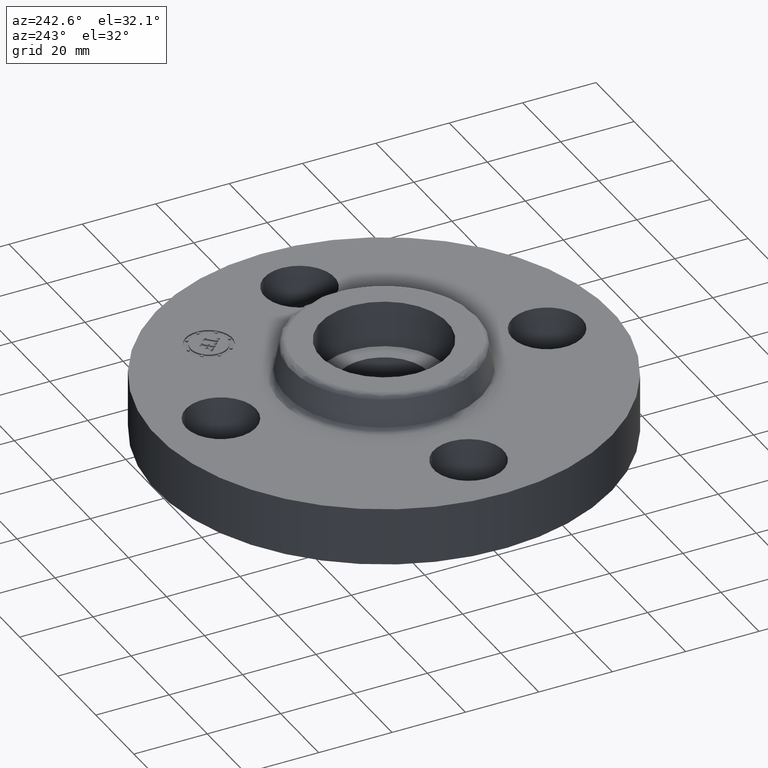
[diagram: clean part render]
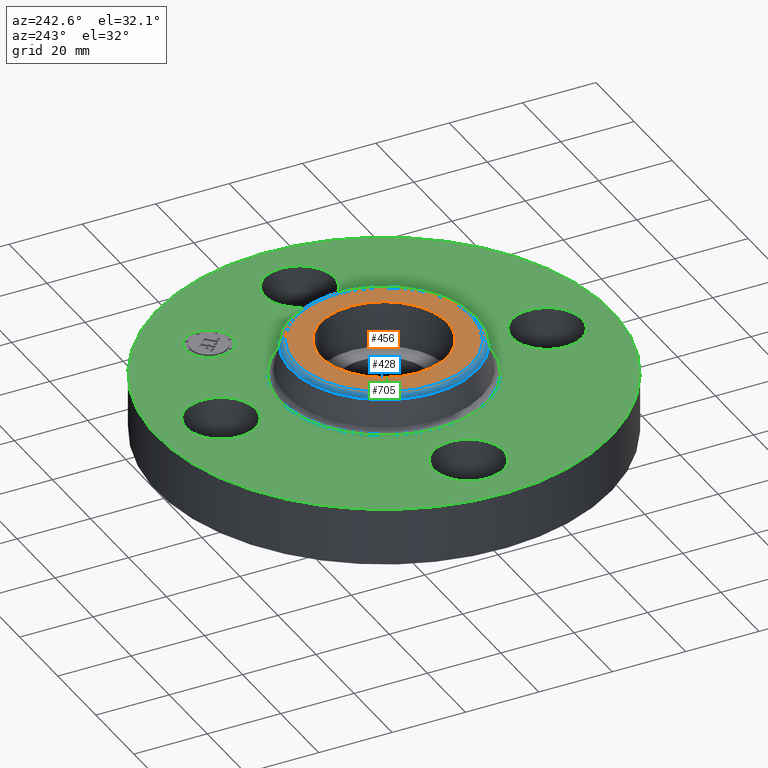
[diagram: same view with three faces highlighted in distinct colors, each labeled with its STEP entity id]
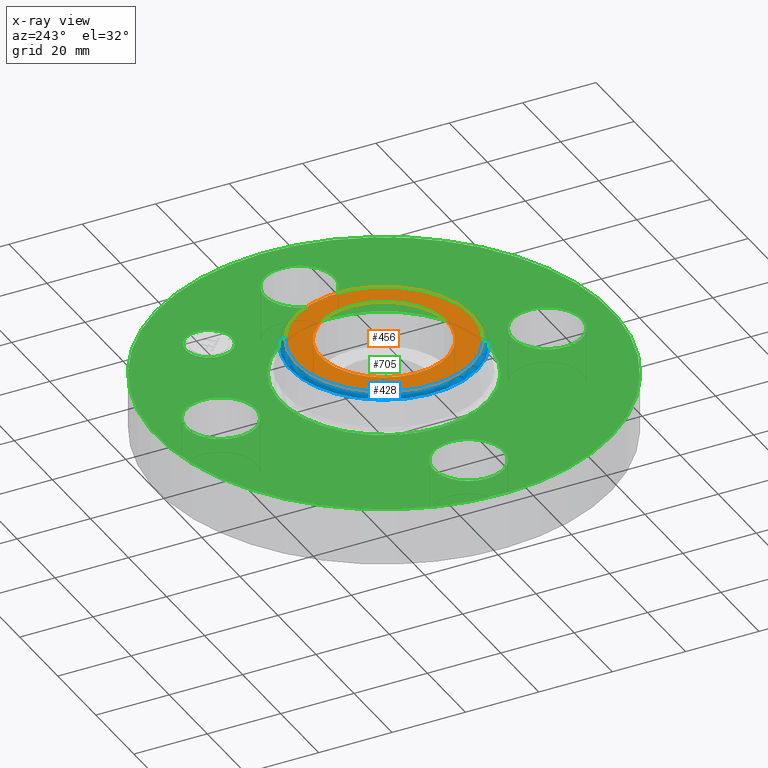
[diagram: x-ray of the same camera — body ghosted, the three highlighted faces saturated]
A machine part, auxiliary view with three faces highlighted in distinct colors.
The next image is the same camera in x-ray (body ghosted, the three faces saturated) — at least one of them is partly hidden behind the body in this view.
Their STEP definitions:

[orange] entity #456 — the highlighted planar face has unit normal (0, 0, -1).
#400=AXIS2_PLACEMENT_3D('Circle Axis2P3D',#398,#399,$) ;
#419=AXIS2_PLACEMENT_3D('Circle Axis2P3D',#417,#418,$) ;
#432=AXIS2_PLACEMENT_3D('Plane Axis2P3D',#429,#430,#431) ;
#440=AXIS2_PLACEMENT_3D('Circle Axis2P3D',#438,#439,$) ;
#449=AXIS2_PLACEMENT_3D('Circle Axis2P3D',#447,#448,$) ;
#395=CARTESIAN_POINT('Vertex',(0.45193037344,0.827252999652,1.)) ;
#398=CARTESIAN_POINT('Axis2P3D Location',(0.,0.,1.)) ;
#402=CARTESIAN_POINT('Vertex',(-0.45193037344,-0.827252999652,1.)) ;
#417=CARTESIAN_POINT('Axis2P3D Location',(0.,0.,1.)) ;
#429=CARTESIAN_POINT('Axis2P3D Location',(0.,0.942649769464,1.)) ;
#438=CARTESIAN_POINT('Axis2P3D Location',(0.,-2.79741234551E-016,1.)) ;
#442=CARTESIAN_POINT('Vertex',(-0.596756142088,0.326009366252,1.)) ;
#444=CARTESIAN_POINT('Vertex',(0.596756142088,-0.326009366252,1.)) ;
#447=CARTESIAN_POINT('Axis2P3D Location',(0.,-1.39870617276E-016,1.)) ;
#399=DIRECTION('Axis2P3D Direction',(0.,0.,-0.0393700787402)) ;
#418=DIRECTION('Axis2P3D Direction',(0.,0.,-0.0393700787402)) ;
#430=DIRECTION('Axis2P3D Direction',(0.,0.,-0.0393700787402)) ;
#431=DIRECTION('Axis2P3D XDirection',(0.0393700787402,0.,0.)) ;
#439=DIRECTION('Axis2P3D Direction',(0.,0.,-0.0393700787402)) ;
#448=DIRECTION('Axis2P3D Direction',(0.,0.,-0.0393700787402)) ;
#435=ORIENTED_EDGE('',*,*,#404,.F.) ;
#436=ORIENTED_EDGE('',*,*,#421,.F.) ;
#453=ORIENTED_EDGE('',*,*,#446,.T.) ;
#454=ORIENTED_EDGE('',*,*,#451,.T.) ;
#455=FACE_BOUND('',#452,.T.) ;
#456=ADVANCED_FACE('PartBody',(#437,#455),#433,.F.) ;
#401=CIRCLE('generated circle',#400,0.942649769464) ;
#420=CIRCLE('generated circle',#419,0.942649769464) ;
#441=CIRCLE('generated circle',#440,0.680000000003) ;
#450=CIRCLE('generated circle',#449,0.680000000003) ;
#404=EDGE_CURVE('',#396,#403,#401,.T.) ;
#421=EDGE_CURVE('',#403,#396,#420,.T.) ;
#446=EDGE_CURVE('',#443,#445,#441,.T.) ;
#451=EDGE_CURVE('',#445,#443,#450,.T.) ;
#434=EDGE_LOOP('',(#435,#436)) ;
#452=EDGE_LOOP('',(#453,#454)) ;
#437=FACE_OUTER_BOUND('',#434,.T.) ;
#433=PLANE('',#432) ;
#396=VERTEX_POINT('',#395) ;
#403=VERTEX_POINT('',#402) ;
#443=VERTEX_POINT('',#442) ;
#445=VERTEX_POINT('',#444) ;

[blue] entity #428 — the highlighted toroidal blend (fillet) surface has major radius 23.9433 mm and minor (blend) radius 1.524 mm.
#376=AXIS2_PLACEMENT_3D('Circle Axis2P3D',#374,#375,$) ;
#389=AXIS2_PLACEMENT_3D('Torus Axis2P3D',#386,#387,#388) ;
#393=AXIS2_PLACEMENT_3D('Circle Axis2P3D',#391,#392,$) ;
#407=AXIS2_PLACEMENT_3D('Circle Axis2P3D',#405,#406,$) ;
#419=AXIS2_PLACEMENT_3D('Circle Axis2P3D',#417,#418,$) ;
#352=CARTESIAN_POINT('Vertex',(0.480258892685,0.879108006303,0.950418890664)) ;
#359=CARTESIAN_POINT('Vertex',(-0.480258892685,-0.879108006303,0.950418890664)) ;
#374=CARTESIAN_POINT('Axis2P3D Location',(0.,0.,0.950418890664)) ;
#386=CARTESIAN_POINT('Axis2P3D Location',(0.,0.,0.940000000004)) ;
#391=CARTESIAN_POINT('Axis2P3D Location',(0.45193037344,0.827252999652,0.940000000004)) ;
#395=CARTESIAN_POINT('Vertex',(0.45193037344,0.827252999652,1.)) ;
#402=CARTESIAN_POINT('Vertex',(-0.45193037344,-0.827252999652,1.)) ;
#405=CARTESIAN_POINT('Axis2P3D Location',(-0.45193037344,-0.827252999652,0.940000000004)) ;
#417=CARTESIAN_POINT('Axis2P3D Location',(0.,0.,1.)) ;
#375=DIRECTION('Axis2P3D Direction',(0.,0.,-0.0393700787402)) ;
#387=DIRECTION('Axis2P3D Direction',(0.,0.,-0.0393700787402)) ;
#388=DIRECTION('Axis2P3D XDirection',(-0.0188750212049,-0.0345504945626,0.)) ;
#392=DIRECTION('Axis2P3D Direction',(-0.0345504945626,0.0188750212049,0.)) ;
#406=DIRECTION('Axis2P3D Direction',(0.0345504945626,-0.0188750212049,0.)) ;
#418=DIRECTION('Axis2P3D Direction',(0.,0.,-0.0393700787402)) ;
#423=ORIENTED_EDGE('',*,*,#378,.F.) ;
#424=ORIENTED_EDGE('',*,*,#409,.T.) ;
#425=ORIENTED_EDGE('',*,*,#421,.T.) ;
#426=ORIENTED_EDGE('',*,*,#397,.F.) ;
#428=ADVANCED_FACE('PartBody',(#427),#390,.T.) ;
#377=CIRCLE('generated circle',#376,1.00173823464) ;
#394=CIRCLE('generated circle',#393,0.0600000000002) ;
#408=CIRCLE('generated circle',#407,0.0600000000002) ;
#420=CIRCLE('generated circle',#419,0.942649769464) ;
#390=TOROIDAL_SURFACE('homeo Torus',#389,0.942649769464,0.0600000000002) ;
#378=EDGE_CURVE('',#360,#353,#377,.T.) ;
#397=EDGE_CURVE('',#353,#396,#394,.F.) ;
#409=EDGE_CURVE('',#360,#403,#408,.F.) ;
#421=EDGE_CURVE('',#403,#396,#420,.T.) ;
#422=EDGE_LOOP('',(#423,#424,#425,#426)) ;
#427=FACE_OUTER_BOUND('',#422,.T.) ;
#353=VERTEX_POINT('',#352) ;
#360=VERTEX_POINT('',#359) ;
#396=VERTEX_POINT('',#395) ;
#403=VERTEX_POINT('',#402) ;

[green] entity #705 — the highlighted planar face has unit normal (0, 0, -1).
#257=AXIS2_PLACEMENT_3D('Circle Axis2P3D',#255,#256,$) ;
#276=AXIS2_PLACEMENT_3D('Circle Axis2P3D',#274,#275,$) ;
#293=AXIS2_PLACEMENT_3D('Circle Axis2P3D',#291,#292,$) ;
#328=AXIS2_PLACEMENT_3D('Circle Axis2P3D',#326,#327,$) ;
#478=AXIS2_PLACEMENT_3D('Circle Axis2P3D',#476,#477,$) ;
#490=AXIS2_PLACEMENT_3D('Circle Axis2P3D',#488,#489,$) ;
#521=AXIS2_PLACEMENT_3D('Circle Axis2P3D',#519,#520,$) ;
#533=AXIS2_PLACEMENT_3D('Circle Axis2P3D',#531,#532,$) ;
#564=AXIS2_PLACEMENT_3D('Circle Axis2P3D',#562,#563,$) ;
#576=AXIS2_PLACEMENT_3D('Circle Axis2P3D',#574,#575,$) ;
#607=AXIS2_PLACEMENT_3D('Circle Axis2P3D',#605,#606,$) ;
#619=AXIS2_PLACEMENT_3D('Circle Axis2P3D',#617,#618,$) ;
#661=AXIS2_PLACEMENT_3D('Plane Axis2P3D',#658,#659,#660) ;
#689=AXIS2_PLACEMENT_3D('Circle Axis2P3D',#687,#688,$) ;
#698=AXIS2_PLACEMENT_3D('Circle Axis2P3D',#696,#697,$) ;
#252=CARTESIAN_POINT('Vertex',(-1.1697983142,-2.14130145102,0.620000000002)) ;
#255=CARTESIAN_POINT('Axis2P3D Location',(0.,0.,0.620000000002)) ;
#259=CARTESIAN_POINT('Vertex',(1.1697983142,2.14130145102,0.620000000002)) ;
#274=CARTESIAN_POINT('Axis2P3D Location',(0.,0.,0.620000000002)) ;
#291=CARTESIAN_POINT('Axis2P3D Location',(0.,0.,0.620000000002)) ;
#295=CARTESIAN_POINT('Vertex',(0.53232821848,0.974420267848,0.620000000002)) ;
#297=CARTESIAN_POINT('Vertex',(-0.53232821848,-0.974420267848,0.620000000002)) ;
#326=CARTESIAN_POINT('Axis2P3D Location',(0.,0.,0.620000000002)) ;
#466=CARTESIAN_POINT('Vertex',(0.179784576977,2.07909346072,0.620000000002)) ;
#473=CARTESIAN_POINT('Vertex',(-0.179784576977,1.4209065393,0.620000000002)) ;
#476=CARTESIAN_POINT('Axis2P3D Location',(-3.21469784777E-016,1.75000000001,0.620000000002)) ;
#488=CARTESIAN_POINT('Axis2P3D Location',(-3.21469784777E-016,1.75000000001,0.620000000002)) ;
#509=CARTESIAN_POINT('Vertex',(-2.07909346072,0.179784576977,0.620000000002)) ;
#516=CARTESIAN_POINT('Vertex',(-1.4209065393,-0.179784576977,0.620000000002)) ;
#519=CARTESIAN_POINT('Axis2P3D Location',(-1.75000000001,-2.14313189852E-016,0.620000000002)) ;
#531=CARTESIAN_POINT('Axis2P3D Location',(-1.75000000001,-2.14313189852E-016,0.620000000002)) ;
#552=CARTESIAN_POINT('Vertex',(-0.179784576977,-2.07909346072,0.620000000002)) ;
#559=CARTESIAN_POINT('Vertex',(0.179784576977,-1.4209065393,0.620000000002)) ;
#562=CARTESIAN_POINT('Axis2P3D Location',(-1.72584639625E-016,-1.75000000001,0.620000000002)) ;
#574=CARTESIAN_POINT('Axis2P3D Location',(-1.72584639625E-016,-1.75000000001,0.620000000002)) ;
#595=CARTESIAN_POINT('Vertex',(1.4209065393,0.179784576977,0.620000000002)) ;
#602=CARTESIAN_POINT('Vertex',(2.07909346072,-0.179784576977,0.620000000002)) ;
#605=CARTESIAN_POINT('Axis2P3D Location',(1.75000000001,0.,0.620000000002)) ;
#617=CARTESIAN_POINT('Axis2P3D Location',(1.75000000001,0.,0.620000000002)) ;
#658=CARTESIAN_POINT('Axis2P3D Location',(0.,2.44000000001,0.620000000002)) ;
#687=CARTESIAN_POINT('Axis2P3D Location',(1.23743686708,1.23743686708,0.620000000002)) ;
#691=CARTESIAN_POINT('Vertex',(1.06242793874,1.41244579543,0.620000000002)) ;
#693=CARTESIAN_POINT('Vertex',(1.41244579543,1.06242793874,0.620000000002)) ;
#696=CARTESIAN_POINT('Axis2P3D Location',(1.23743686708,1.23743686708,0.620000000002)) ;
#256=DIRECTION('Axis2P3D Direction',(0.,0.,-0.0393700787402)) ;
#275=DIRECTION('Axis2P3D Direction',(0.,0.,-0.0393700787402)) ;
#292=DIRECTION('Axis2P3D Direction',(0.,0.,-0.0393700787402)) ;
#327=DIRECTION('Axis2P3D Direction',(0.,0.,-0.0393700787402)) ;
#477=DIRECTION('Axis2P3D Direction',(0.,0.,-0.0393700787402)) ;
#489=DIRECTION('Axis2P3D Direction',(0.,0.,-0.0393700787402)) ;
#520=DIRECTION('Axis2P3D Direction',(-0.,0.,-0.0393700787402)) ;
#532=DIRECTION('Axis2P3D Direction',(-0.,0.,-0.0393700787402)) ;
#563=DIRECTION('Axis2P3D Direction',(0.,-0.,-0.0393700787402)) ;
#575=DIRECTION('Axis2P3D Direction',(0.,-0.,-0.0393700787402)) ;
#606=DIRECTION('Axis2P3D Direction',(0.,-0.,-0.0393700787402)) ;
#618=DIRECTION('Axis2P3D Direction',(0.,-0.,-0.0393700787402)) ;
#659=DIRECTION('Axis2P3D Direction',(0.,0.,-0.0393700787402)) ;
#660=DIRECTION('Axis2P3D XDirection',(0.0393700787402,0.,0.)) ;
#688=DIRECTION('Axis2P3D Direction',(0.,0.,-0.0393700787402)) ;
#697=DIRECTION('Axis2P3D Direction',(0.,0.,-0.0393700787402)) ;
#664=ORIENTED_EDGE('',*,*,#278,.F.) ;
#665=ORIENTED_EDGE('',*,*,#261,.F.) ;
#668=ORIENTED_EDGE('',*,*,#609,.T.) ;
#669=ORIENTED_EDGE('',*,*,#621,.T.) ;
#672=ORIENTED_EDGE('',*,*,#330,.T.) ;
#673=ORIENTED_EDGE('',*,*,#299,.T.) ;
#676=ORIENTED_EDGE('',*,*,#566,.T.) ;
#677=ORIENTED_EDGE('',*,*,#578,.T.) ;
#680=ORIENTED_EDGE('',*,*,#523,.T.) ;
#681=ORIENTED_EDGE('',*,*,#535,.T.) ;
#684=ORIENTED_EDGE('',*,*,#480,.T.) ;
#685=ORIENTED_EDGE('',*,*,#492,.T.) ;
#702=ORIENTED_EDGE('',*,*,#695,.T.) ;
#703=ORIENTED_EDGE('',*,*,#700,.T.) ;
#670=FACE_BOUND('',#667,.T.) ;
#674=FACE_BOUND('',#671,.T.) ;
#678=FACE_BOUND('',#675,.T.) ;
#682=FACE_BOUND('',#679,.T.) ;
#686=FACE_BOUND('',#683,.T.) ;
#704=FACE_BOUND('',#701,.T.) ;
#705=ADVANCED_FACE('PartBody',(#666,#670,#674,#678,#682,#686,#704),#662,.F.) ;
#258=CIRCLE('generated circle',#257,2.44000000001) ;
#277=CIRCLE('generated circle',#276,2.44000000001) ;
#294=CIRCLE('generated circle',#293,1.11034597788) ;
#329=CIRCLE('generated circle',#328,1.11034597788) ;
#479=CIRCLE('generated circle',#478,0.375000000001) ;
#491=CIRCLE('generated circle',#490,0.375000000001) ;
#522=CIRCLE('generated circle',#521,0.375000000002) ;
#534=CIRCLE('generated circle',#533,0.375000000002) ;
#565=CIRCLE('generated circle',#564,0.375000000001) ;
#577=CIRCLE('generated circle',#576,0.375000000001) ;
#608=CIRCLE('generated circle',#607,0.375000000001) ;
#620=CIRCLE('generated circle',#619,0.375000000001) ;
#690=CIRCLE('generated circle',#689,0.247500000001) ;
#699=CIRCLE('generated circle',#698,0.247500000001) ;
#261=EDGE_CURVE('',#253,#260,#258,.T.) ;
#278=EDGE_CURVE('',#260,#253,#277,.T.) ;
#299=EDGE_CURVE('',#296,#298,#294,.T.) ;
#330=EDGE_CURVE('',#298,#296,#329,.T.) ;
#480=EDGE_CURVE('',#467,#474,#479,.T.) ;
#492=EDGE_CURVE('',#474,#467,#491,.T.) ;
#523=EDGE_CURVE('',#510,#517,#522,.T.) ;
#535=EDGE_CURVE('',#517,#510,#534,.T.) ;
#566=EDGE_CURVE('',#553,#560,#565,.T.) ;
#578=EDGE_CURVE('',#560,#553,#577,.T.) ;
#609=EDGE_CURVE('',#596,#603,#608,.T.) ;
#621=EDGE_CURVE('',#603,#596,#620,.T.) ;
#695=EDGE_CURVE('',#692,#694,#690,.T.) ;
#700=EDGE_CURVE('',#694,#692,#699,.T.) ;
#663=EDGE_LOOP('',(#664,#665)) ;
#667=EDGE_LOOP('',(#668,#669)) ;
#671=EDGE_LOOP('',(#672,#673)) ;
#675=EDGE_LOOP('',(#676,#677)) ;
#679=EDGE_LOOP('',(#680,#681)) ;
#683=EDGE_LOOP('',(#684,#685)) ;
#701=EDGE_LOOP('',(#702,#703)) ;
#666=FACE_OUTER_BOUND('',#663,.T.) ;
#662=PLANE('',#661) ;
#253=VERTEX_POINT('',#252) ;
#260=VERTEX_POINT('',#259) ;
#296=VERTEX_POINT('',#295) ;
#298=VERTEX_POINT('',#297) ;
#467=VERTEX_POINT('',#466) ;
#474=VERTEX_POINT('',#473) ;
#510=VERTEX_POINT('',#509) ;
#517=VERTEX_POINT('',#516) ;
#553=VERTEX_POINT('',#552) ;
#560=VERTEX_POINT('',#559) ;
#596=VERTEX_POINT('',#595) ;
#603=VERTEX_POINT('',#602) ;
#692=VERTEX_POINT('',#691) ;
#694=VERTEX_POINT('',#693) ;